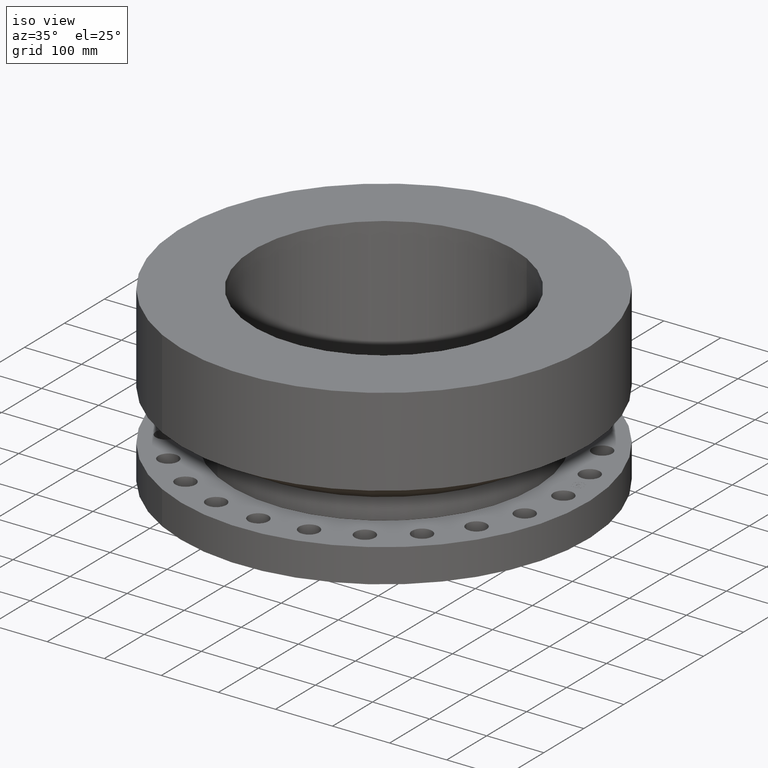
[diagram: clean part render]
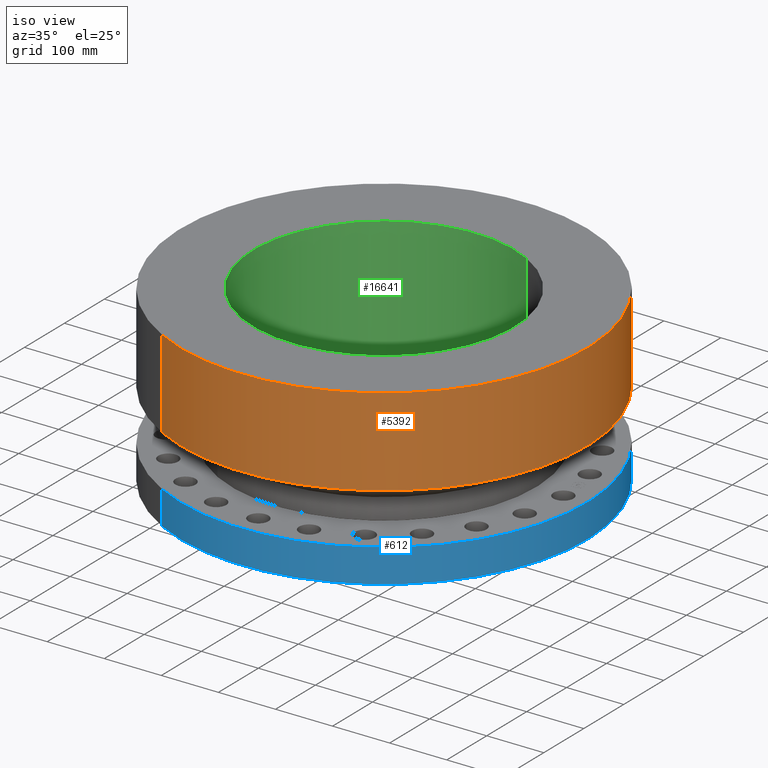
[diagram: same view with three faces highlighted in distinct colors, each labeled with its STEP entity id]
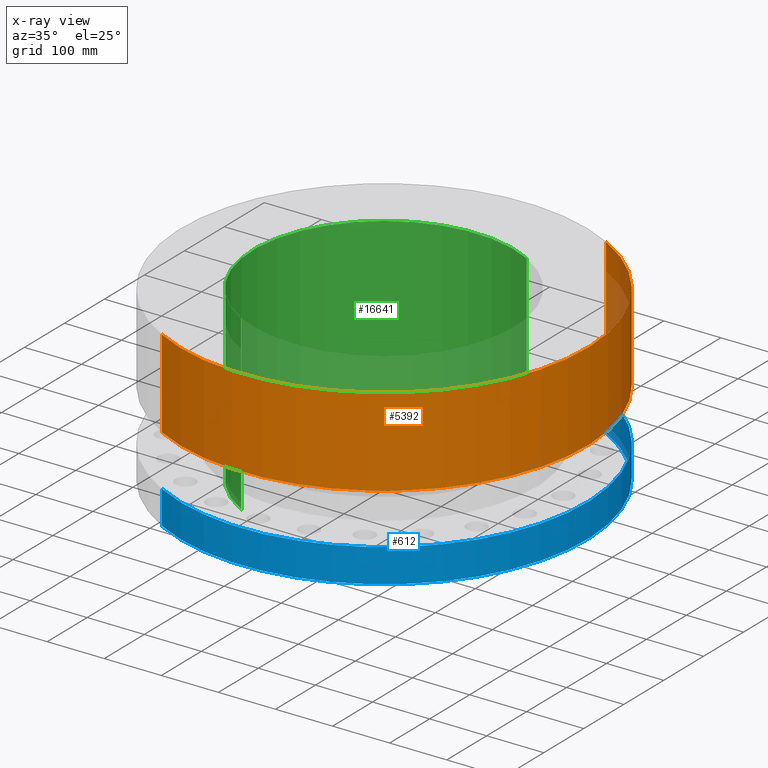
[diagram: x-ray of the same camera — body ghosted, the three highlighted faces saturated]
A machine part, iso view with three faces highlighted in distinct colors.
The next image is the same camera in x-ray (body ghosted, the three faces saturated) — at least one of them is partly hidden behind the body in this view.
Their STEP definitions:

[orange] entity #5392 — the highlighted cylindrical surface (partial cylindrical patch) has radius 355.6 mm, axis along (0, 0, -1).
#573=AXIS2_PLACEMENT_3D('Cylinder Axis2P3D',#570,#571,#572) ;
#2495=AXIS2_PLACEMENT_3D('Circle Axis2P3D',#2493,#2494,$) ;
#5376=AXIS2_PLACEMENT_3D('Circle Axis2P3D',#5374,#5375,$) ;
#570=CARTESIAN_POINT('Axis2P3D Location',(0.,0.,5.93750000002)) ;
#2490=CARTESIAN_POINT('Vertex',(6.71195754049,12.2861558665,5.83822594219)) ;
#2493=CARTESIAN_POINT('Axis2P3D Location',(0.,0.,5.83822594219)) ;
#2497=CARTESIAN_POINT('Vertex',(-6.71195754049,-12.2861558665,5.83822594219)) ;
#5367=CARTESIAN_POINT('Line Origine',(6.71195754049,12.2861558665,8.88786297112)) ;
#5371=CARTESIAN_POINT('Vertex',(6.71195754049,12.2861558665,11.9375)) ;
#5374=CARTESIAN_POINT('Axis2P3D Location',(0.,0.,11.9375)) ;
#5378=CARTESIAN_POINT('Vertex',(-6.71195754049,-12.2861558665,11.9375)) ;
#5381=CARTESIAN_POINT('Line Origine',(-6.71195754049,-12.2861558665,8.88786297112)) ;
#571=DIRECTION('Axis2P3D Direction',(0.,0.,-0.0393700787402)) ;
#572=DIRECTION('Axis2P3D XDirection',(-0.0188750212049,-0.0345504945626,0.)) ;
#2494=DIRECTION('Axis2P3D Direction',(-0.,0.,0.0393700787402)) ;
#5368=DIRECTION('Vector Direction',(0.,0.,-0.0393700787402)) ;
#5375=DIRECTION('Axis2P3D Direction',(0.,0.,-0.0393700787402)) ;
#5382=DIRECTION('Vector Direction',(0.,0.,-0.0393700787402)) ;
#5369=VECTOR('Line Direction',#5368,0.0393700787402) ;
#5383=VECTOR('Line Direction',#5382,0.0393700787402) ;
#5387=ORIENTED_EDGE('',*,*,#2499,.F.) ;
#5388=ORIENTED_EDGE('',*,*,#5373,.T.) ;
#5389=ORIENTED_EDGE('',*,*,#5380,.T.) ;
#5390=ORIENTED_EDGE('',*,*,#5385,.F.) ;
#5392=ADVANCED_FACE('PartBody',(#5391),#574,.T.) ;
#2496=CIRCLE('generated circle',#2495,14.0000000001) ;
#5377=CIRCLE('generated circle',#5376,14.0000000001) ;
#574=CYLINDRICAL_SURFACE('generated cylinder',#573,14.0000000001) ;
#2499=EDGE_CURVE('',#2491,#2498,#2496,.F.) ;
#5373=EDGE_CURVE('',#2491,#5372,#5370,.F.) ;
#5380=EDGE_CURVE('',#5372,#5379,#5377,.T.) ;
#5385=EDGE_CURVE('',#2498,#5379,#5384,.F.) ;
#5386=EDGE_LOOP('',(#5387,#5388,#5389,#5390)) ;
#5391=FACE_OUTER_BOUND('',#5386,.T.) ;
#5370=LINE('Line',#5367,#5369) ;
#5384=LINE('Line',#5381,#5383) ;
#2491=VERTEX_POINT('',#2490) ;
#2498=VERTEX_POINT('',#2497) ;
#5372=VERTEX_POINT('',#5371) ;
#5379=VERTEX_POINT('',#5378) ;

[blue] entity #612 — the highlighted cylindrical surface (partial cylindrical patch) has radius 355.6 mm, axis along (0, 0, -1).
#82=AXIS2_PLACEMENT_3D('Circle Axis2P3D',#80,#81,$) ;
#573=AXIS2_PLACEMENT_3D('Cylinder Axis2P3D',#570,#571,#572) ;
#603=AXIS2_PLACEMENT_3D('Circle Axis2P3D',#601,#602,$) ;
#80=CARTESIAN_POINT('Axis2P3D Location',(0.,0.,2.31750000001)) ;
#84=CARTESIAN_POINT('Vertex',(6.71195754049,12.2861558665,2.31750000001)) ;
#86=CARTESIAN_POINT('Vertex',(-6.71195754049,-12.2861558665,2.31750000001)) ;
#570=CARTESIAN_POINT('Axis2P3D Location',(0.,0.,5.93750000002)) ;
#579=CARTESIAN_POINT('Vertex',(-6.71195754049,-12.2861558665,2.23792987641E-015)) ;
#581=CARTESIAN_POINT('Vertex',(6.71195754049,12.2861558665,2.23792987641E-015)) ;
#584=CARTESIAN_POINT('Line Origine',(-6.71195754049,-12.2861558665,8.88786297112)) ;
#589=CARTESIAN_POINT('Line Origine',(6.71195754049,12.2861558665,8.88786297112)) ;
#601=CARTESIAN_POINT('Axis2P3D Location',(0.,0.,2.23792987641E-015)) ;
#81=DIRECTION('Axis2P3D Direction',(0.,0.,-0.0393700787402)) ;
#571=DIRECTION('Axis2P3D Direction',(0.,0.,-0.0393700787402)) ;
#572=DIRECTION('Axis2P3D XDirection',(-0.0188750212049,-0.0345504945626,0.)) ;
#585=DIRECTION('Vector Direction',(0.,0.,-0.0393700787402)) ;
#590=DIRECTION('Vector Direction',(0.,0.,-0.0393700787402)) ;
#602=DIRECTION('Axis2P3D Direction',(0.,0.,-0.0393700787402)) ;
#586=VECTOR('Line Direction',#585,0.0393700787402) ;
#591=VECTOR('Line Direction',#590,0.0393700787402) ;
#607=ORIENTED_EDGE('',*,*,#605,.F.) ;
#608=ORIENTED_EDGE('',*,*,#593,.T.) ;
#609=ORIENTED_EDGE('',*,*,#88,.T.) ;
#610=ORIENTED_EDGE('',*,*,#588,.F.) ;
#612=ADVANCED_FACE('PartBody',(#611),#574,.T.) ;
#83=CIRCLE('generated circle',#82,14.0000000001) ;
#604=CIRCLE('generated circle',#603,14.0000000001) ;
#574=CYLINDRICAL_SURFACE('generated cylinder',#573,14.0000000001) ;
#88=EDGE_CURVE('',#85,#87,#83,.T.) ;
#588=EDGE_CURVE('',#580,#87,#587,.F.) ;
#593=EDGE_CURVE('',#582,#85,#592,.F.) ;
#605=EDGE_CURVE('',#582,#580,#604,.T.) ;
#606=EDGE_LOOP('',(#607,#608,#609,#610)) ;
#611=FACE_OUTER_BOUND('',#606,.T.) ;
#587=LINE('Line',#584,#586) ;
#592=LINE('Line',#589,#591) ;
#85=VERTEX_POINT('',#84) ;
#87=VERTEX_POINT('',#86) ;
#580=VERTEX_POINT('',#579) ;
#582=VERTEX_POINT('',#581) ;

[green] entity #16641 — the highlighted cylindrical surface (partial cylindrical patch) has radius 228.6 mm, axis along (0, 0, -1).
#16164=AXIS2_PLACEMENT_3D('Circle Axis2P3D',#16162,#16163,$) ;
#16602=AXIS2_PLACEMENT_3D('Cylinder Axis2P3D',#16599,#16600,#16601) ;
#16632=AXIS2_PLACEMENT_3D('Circle Axis2P3D',#16630,#16631,$) ;
#16162=CARTESIAN_POINT('Axis2P3D Location',(0.,0.,11.9375)) ;
#16166=CARTESIAN_POINT('Vertex',(-4.31482984746,-7.89824305704,11.9375)) ;
#16168=CARTESIAN_POINT('Vertex',(4.31482984746,7.89824305704,11.9375)) ;
#16599=CARTESIAN_POINT('Axis2P3D Location',(0.,0.,5.93750000002)) ;
#16608=CARTESIAN_POINT('Vertex',(-4.31482984746,-7.89824305704,0.)) ;
#16610=CARTESIAN_POINT('Vertex',(4.31482984746,7.89824305704,0.)) ;
#16613=CARTESIAN_POINT('Line Origine',(-4.31482984746,-7.89824305704,5.96875000002)) ;
#16618=CARTESIAN_POINT('Line Origine',(4.31482984746,7.89824305704,5.96875000002)) ;
#16630=CARTESIAN_POINT('Axis2P3D Location',(0.,0.,0.)) ;
#16163=DIRECTION('Axis2P3D Direction',(0.,0.,-0.0393700787402)) ;
#16600=DIRECTION('Axis2P3D Direction',(0.,0.,-0.0393700787402)) ;
#16601=DIRECTION('Axis2P3D XDirection',(-0.0188750212049,-0.0345504945626,0.)) ;
#16614=DIRECTION('Vector Direction',(0.,0.,-0.0393700787402)) ;
#16619=DIRECTION('Vector Direction',(0.,0.,-0.0393700787402)) ;
#16631=DIRECTION('Axis2P3D Direction',(0.,0.,-0.0393700787402)) ;
#16615=VECTOR('Line Direction',#16614,0.0393700787402) ;
#16620=VECTOR('Line Direction',#16619,0.0393700787402) ;
#16636=ORIENTED_EDGE('',*,*,#16634,.F.) ;
#16637=ORIENTED_EDGE('',*,*,#16622,.F.) ;
#16638=ORIENTED_EDGE('',*,*,#16170,.F.) ;
#16639=ORIENTED_EDGE('',*,*,#16617,.T.) ;
#16641=ADVANCED_FACE('PartBody',(#16640),#16603,.F.) ;
#16165=CIRCLE('generated circle',#16164,9.00000000004) ;
#16633=CIRCLE('generated circle',#16632,9.00000000004) ;
#16603=CYLINDRICAL_SURFACE('generated cylinder',#16602,9.00000000004) ;
#16170=EDGE_CURVE('',#16167,#16169,#16165,.T.) ;
#16617=EDGE_CURVE('',#16167,#16609,#16616,.T.) ;
#16622=EDGE_CURVE('',#16169,#16611,#16621,.T.) ;
#16634=EDGE_CURVE('',#16611,#16609,#16633,.F.) ;
#16635=EDGE_LOOP('',(#16636,#16637,#16638,#16639)) ;
#16640=FACE_OUTER_BOUND('',#16635,.T.) ;
#16616=LINE('Line',#16613,#16615) ;
#16621=LINE('Line',#16618,#16620) ;
#16167=VERTEX_POINT('',#16166) ;
#16169=VERTEX_POINT('',#16168) ;
#16609=VERTEX_POINT('',#16608) ;
#16611=VERTEX_POINT('',#16610) ;